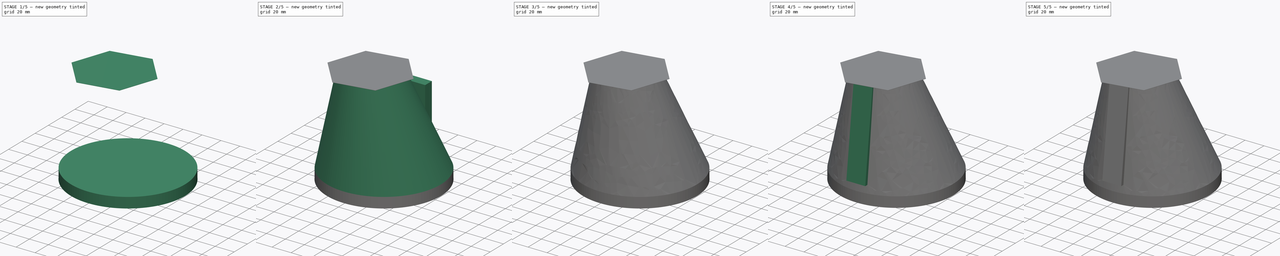
[diagram: build sequence overview — one tinted view per stage of 5, left to right]
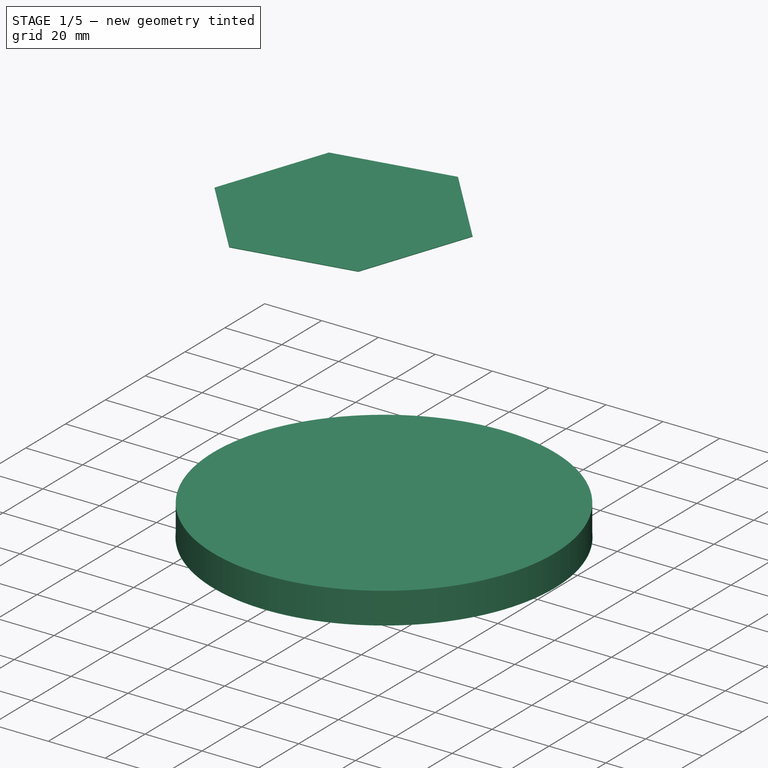
[diagram: stage 1 of 5 — iso view after this stage's code; geometry added in this stage tinted green]
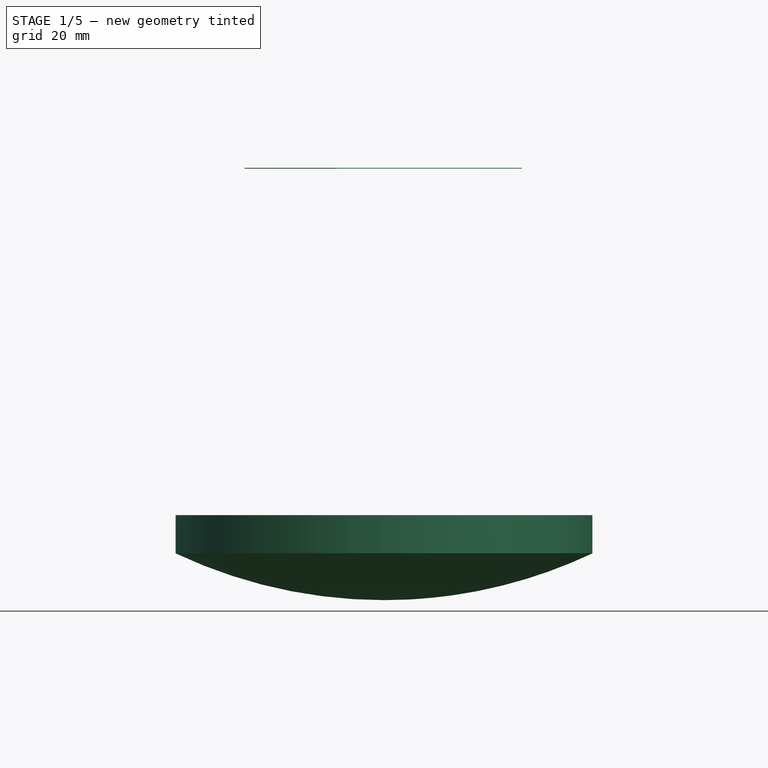
[diagram: stage 1 of 5 — front view after this stage's code; geometry added in this stage tinted green]
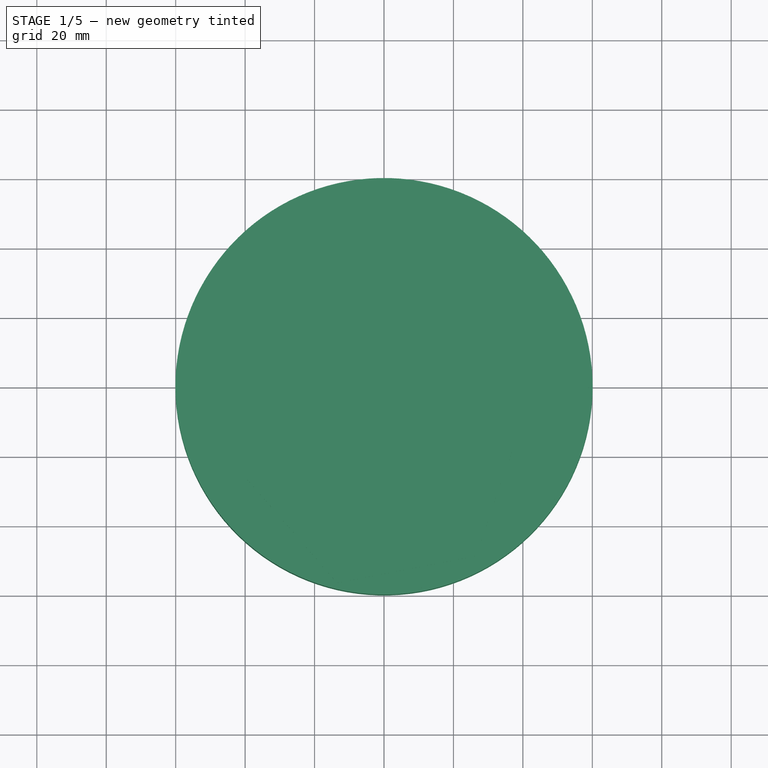
[diagram: stage 1 of 5 — top view after this stage's code; geometry added in this stage tinted green]
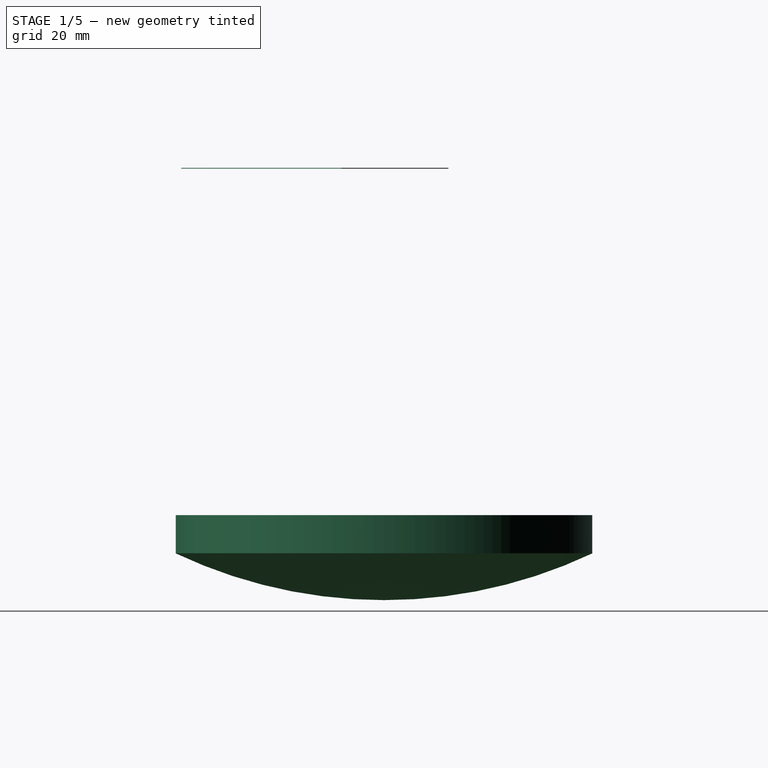
[diagram: stage 1 of 5 — right view after this stage's code; geometry added in this stage tinted green]
FCSTD DOCUMENT  (FreeCAD 0.16R6706 (Git))
Label: Simulateur_Aube_freeCAD
License: All rights reserved
LicenseURL: http://en.wikipedia.org/wiki/All_rights_reserved
objects: Sketcher::SketchObject×20, PartDesign::Pad×15, Part::Cut×5, Part::FeaturePython×4, Part::Loft×2, App::DocumentObjectGroup×2, Part::Sphere×1, Part::MultiFuse×1, Part::Fuse×1
note: 64 computed .brp shape members not serialized (recipe doc carries the construction recipe); baked Part::Feature solids carry a one-line shape summary decoded from their .brp

FEATURE [Sketcher::SketchObject] Sketch015  label="cercle_ext_base"
  sketch-geometry (1):
    g0: Circle CenterX=0 CenterY=0 CenterZ=0 NormalX=0 NormalY=0 NormalZ=1 Radius=60
  constraints (2):
    c: Coincident(g0,g-1)
    c: Radius(g0) = 60
FEATURE [Sketcher::SketchObject] Sketch016  label="cercle_int_base"
  sketch-geometry (1):
    g0: Circle CenterX=0 CenterY=0 CenterZ=0 NormalX=0 NormalY=0 NormalZ=1 Radius=59
  constraints (2):
    c: Coincident(g-1,g0)
    c: Radius(g0) = 59
FEATURE [PartDesign::Pad] Pad009
  Length = 11
  Length2 = 100
  Reversed = true
  Sketch = -> Sketch015
  Type = 0
FEATURE [PartDesign::Pad] Pad010
  Length = 11
  Length2 = 100
  Reversed = true
  Sketch = -> Sketch016
  Type = 0
FEATURE [Part::Sphere] Sphere  label="sphere_ext"
  Angle1 = -90
  Angle2 = 90
  Angle3 = 360
  Placement = pos=(0,0,116) rot=(0,0,1;0rad)
  Radius = 140.5
FEATURE [Sketcher::SketchObject] Sketch018
  Placement = pos=(0,0,-11) rot=(0,0,1;0rad)
  sketch-geometry (1):
    g0: Circle CenterX=0 CenterY=0 CenterZ=0 NormalX=0 NormalY=0 NormalZ=1 Radius=200
  constraints (2):
    c: Coincident(g-1,g0)
    c: Radius(g0) = 200
FEATURE [PartDesign::Pad] Pad011
  Length = 395
  Length2 = 100
  Placement = pos=(0,0,-11) rot=(0,0,1;0rad)
  Sketch = -> Sketch018
  Type = 0
FEATURE [Part::Cut] Cut010
  Base = -> Sphere
  Tool = -> Pad011
FEATURE [App::DocumentObjectGroup] Groupe001  label="capot"
  Group = -> [Fusion]
FEATURE [Sketcher::SketchObject] Sketch039
  Placement = pos=(0,0,99.8) rot=(0,0,1;0rad)
  sketch-geometry (7):
    g0: LineSegment StartX=39.7079 StartY=-12.2074 StartZ=0 EndX=13.0361 EndY=18.524 EndZ=0
    g1: LineSegment StartX=13.0361 StartY=18.524 StartZ=0 EndX=-26.9139 EndY=10.7912 EndZ=0
    g2: LineSegment StartX=-26.9139 StartY=10.7912 StartZ=0 EndX=-40.1922 EndY=-27.6728 EndZ=0
    g3: LineSegment StartX=-40.1922 StartY=-27.6728 StartZ=0 EndX=-13.5204 EndY=-58.4042 EndZ=0
    g4: LineSegment StartX=-13.5204 StartY=-58.4042 StartZ=0 EndX=26.4296 EndY=-50.6715 EndZ=0
    g5: LineSegment StartX=26.4296 StartY=-50.6715 StartZ=0 EndX=39.7079 EndY=-12.2074 EndZ=0
    g6: Circle [constr] CenterX=-0.242155 CenterY=-19.9401 CenterZ=0 NormalX=0 NormalY=0 NormalZ=1 Radius=40.6915
  constraints (13):
    c: Coincident(g0,g1)
    c: Coincident(g1,g2)
    c: Coincident(g2,g3)
    c: Coincident(g3,g4)
    c: Coincident(g4,g5)
    c: Coincident(g5,g0)
    c: Equal(g0, g1-g5) x5
    c: PointOnObject(g0,g6)
    c: PointOnObject(g1,g6)
    c: PointOnObject(g2,g6)
    c: PointOnObject(g3,g6)
    c: PointOnObject(g4,g6)
    c: PointOnObject(g5,g6)
FEATURE [PartDesign::Pad] Pad
  Length = 0.2
  Length2 = 100
  Placement = pos=(0,0,99.8) rot=(0,0,1;0rad)
  Sketch = -> Sketch039
  Type = 0
FEATURE [App::DocumentObjectGroup] Groupe  label="corp"
  Group = -> [Sketch005,Fusion001,Pad]
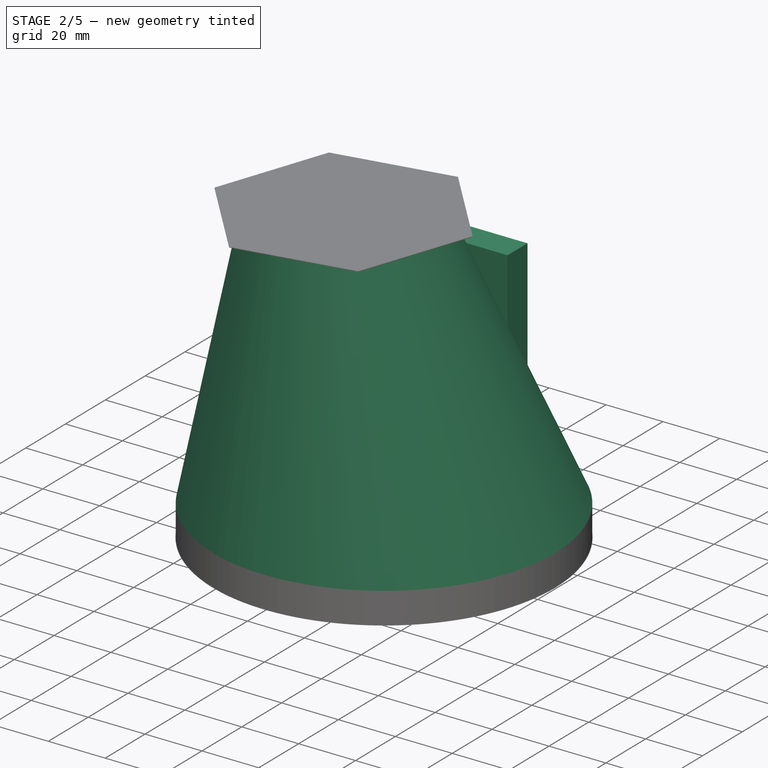
[diagram: stage 2 of 5 — iso view after this stage's code; geometry added in this stage tinted green]
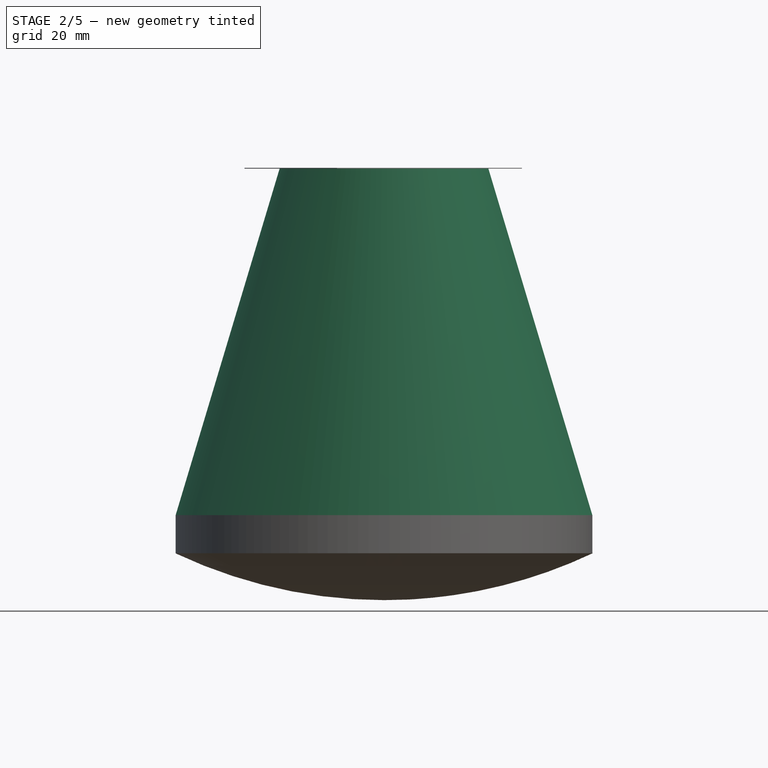
[diagram: stage 2 of 5 — front view after this stage's code; geometry added in this stage tinted green]
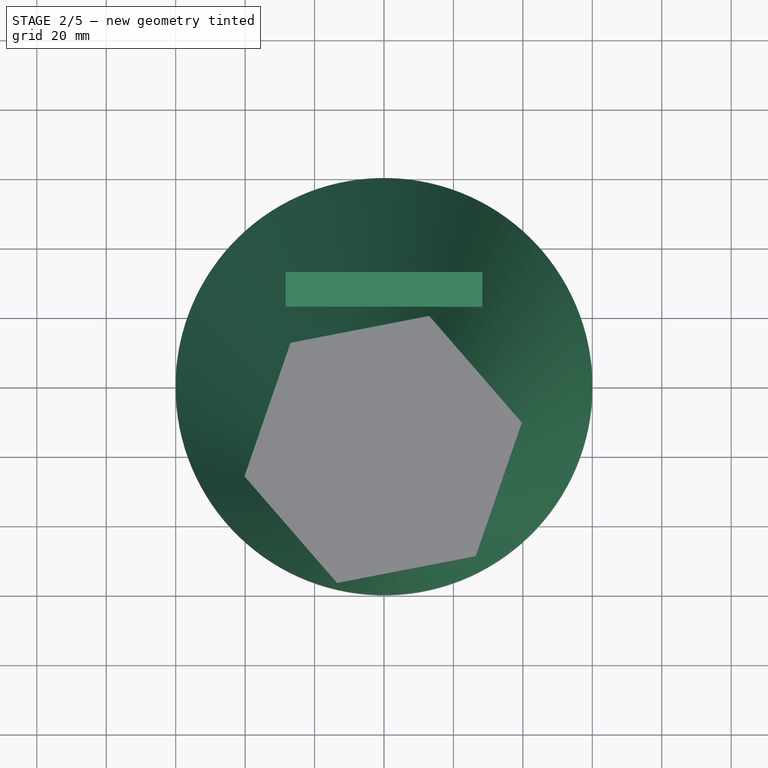
[diagram: stage 2 of 5 — top view after this stage's code; geometry added in this stage tinted green]
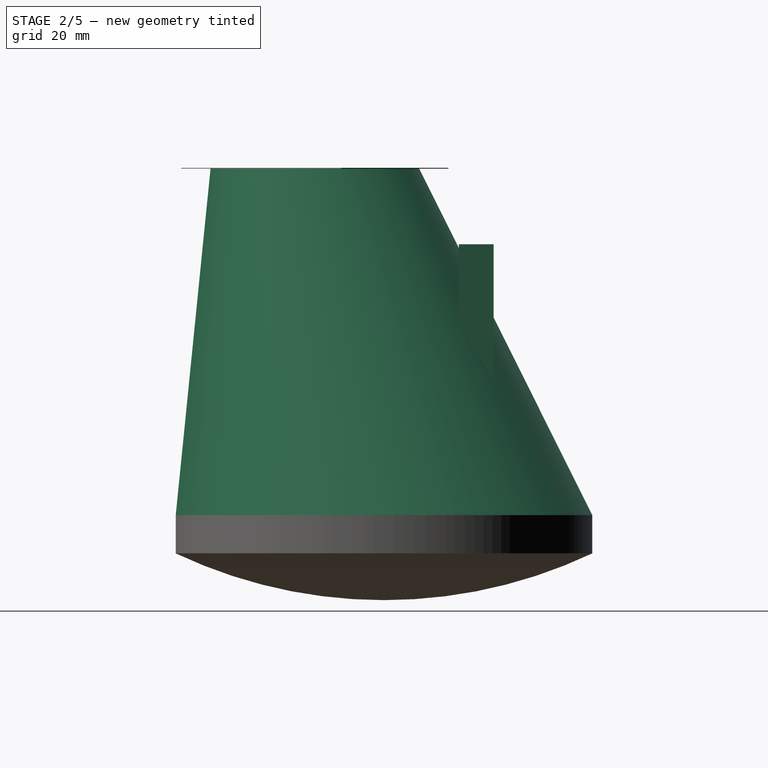
[diagram: stage 2 of 5 — right view after this stage's code; geometry added in this stage tinted green]
FEATURE [Sketcher::SketchObject] Sketch  label="cercle_ext_grand"
  sketch-geometry (1):
    g0: Circle CenterX=0 CenterY=0 CenterZ=0 NormalX=0 NormalY=0 NormalZ=1 Radius=60
  constraints (2):
    c: Coincident(g0,g-1)
    c: Radius(g0) = 60
FEATURE [Sketcher::SketchObject] Sketch002  label="cercle_int_grand"
  sketch-geometry (1):
    g0: Circle CenterX=0 CenterY=0 CenterZ=0 NormalX=0 NormalY=0 NormalZ=1 Radius=58
  constraints (2):
    c: Radius(g0) = 58
    c: Coincident(g0,g-1)
FEATURE [Sketcher::SketchObject] Sketch003  label="cercle_int_petit"
  Placement = pos=(0,0,98) rot=(0,0,1;0rad)
  sketch-geometry (1):
    g0: Circle CenterX=0 CenterY=-19.9986 CenterZ=0 NormalX=0 NormalY=0 NormalZ=1 Radius=28
  constraints (2):
    c: Radius(g0) = 28
    c: PointOnObject(g0,g-2)
FEATURE [Sketcher::SketchObject] Sketch004  label="cercle_ext_petit"
  Placement = pos=(0,0,100) rot=(0,0,1;0rad)
  sketch-geometry (1):
    g0: Circle CenterX=0 CenterY=-19.9504 CenterZ=0 NormalX=0 NormalY=0 NormalZ=1 Radius=30
  constraints (2):
    c: PointOnObject(g0,g-2)
    c: Radius(g0) = 30
FEATURE [Part::Loft] Loft  label="loft_coque_ext"
  Closed = false
  Ruled = false
  Sections = -> [Sketch,Sketch004]
  Solid = true
FEATURE [Part::Loft] Loft001  label="loft_coque_int"
  Closed = false
  Ruled = false
  Sections = -> [Sketch002,Sketch003]
  Solid = true
FEATURE [Part::Cut] Cut006
  Base = -> Pad009
  Tool = -> Pad010
FEATURE [Part::Cut] Cut  label="Coque_ext"
  Base = -> Loft
  Tool = -> Loft001
FEATURE [Sketcher::SketchObject] Sketch036  label="support_pied01"
  Placement = pos=(0,0,8) rot=(0,0,1;0rad)
  sketch-geometry (4):
    g0: LineSegment StartX=-28.3345 StartY=31.57 StartZ=0 EndX=28.3345 EndY=31.57 EndZ=0
    g1: LineSegment StartX=28.3345 StartY=31.57 StartZ=0 EndX=28.3345 EndY=21.57 EndZ=0
    g2: LineSegment StartX=28.3345 StartY=21.57 StartZ=0 EndX=-28.3345 EndY=21.57 EndZ=0
    g3: LineSegment StartX=-28.3345 StartY=21.57 StartZ=0 EndX=-28.3345 EndY=31.57 EndZ=0
  constraints (10):
    c: Coincident(g0,g1)
    c: Coincident(g1,g2)
    c: Coincident(g2,g3)
    c: Coincident(g3,g0)
    c: Horizontal(g0)
    c: Horizontal(g2)
    c: Vertical(g1)
    c: Vertical(g3)
    c: Symmetric(g0,g0,g-2)
    c: DistanceY(g3,g3) = 10
FEATURE [PartDesign::Pad] Pad021  label="support pied_1"
  Length = 70
  Length2 = 100
  Placement = pos=(0,0,8) rot=(0,0,1;0rad)
  Sketch = -> Sketch036
  Type = 0
FEATURE [Part::Fuse] Fusion
  Base = -> Cut006
  Tool = -> Cut010
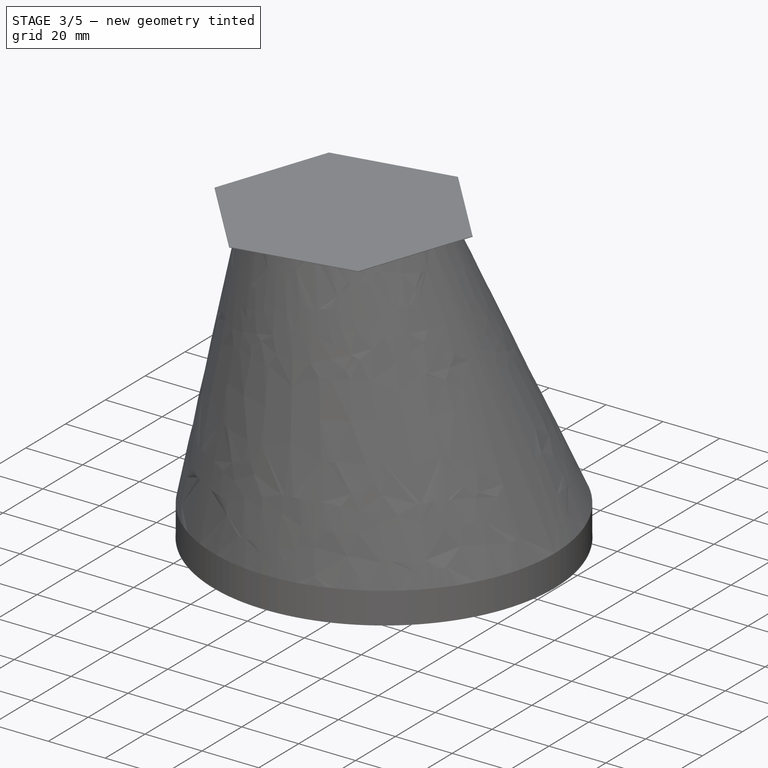
[diagram: stage 3 of 5 — iso view after this stage's code; geometry added in this stage tinted green]
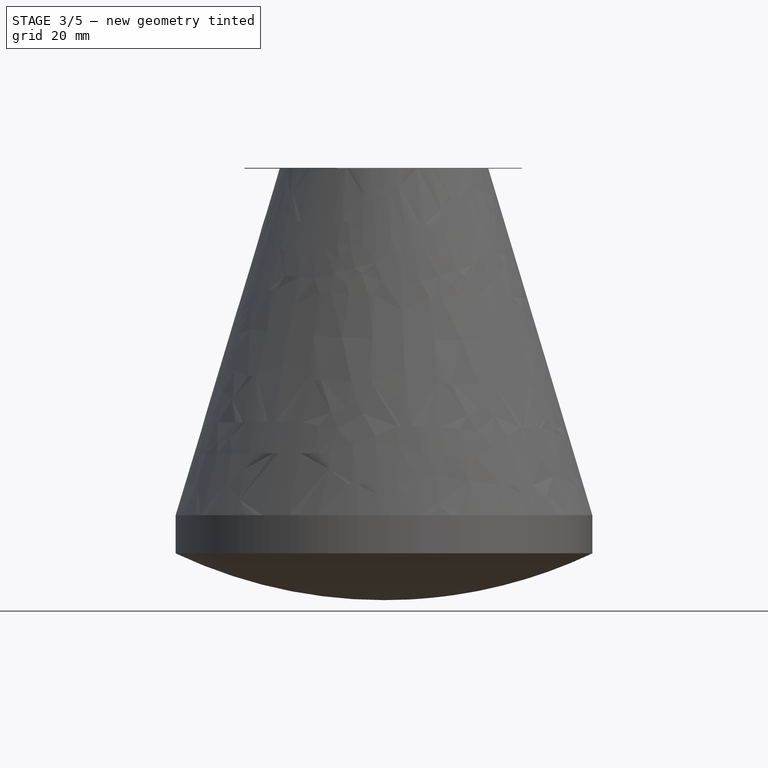
[diagram: stage 3 of 5 — front view after this stage's code; geometry added in this stage tinted green]
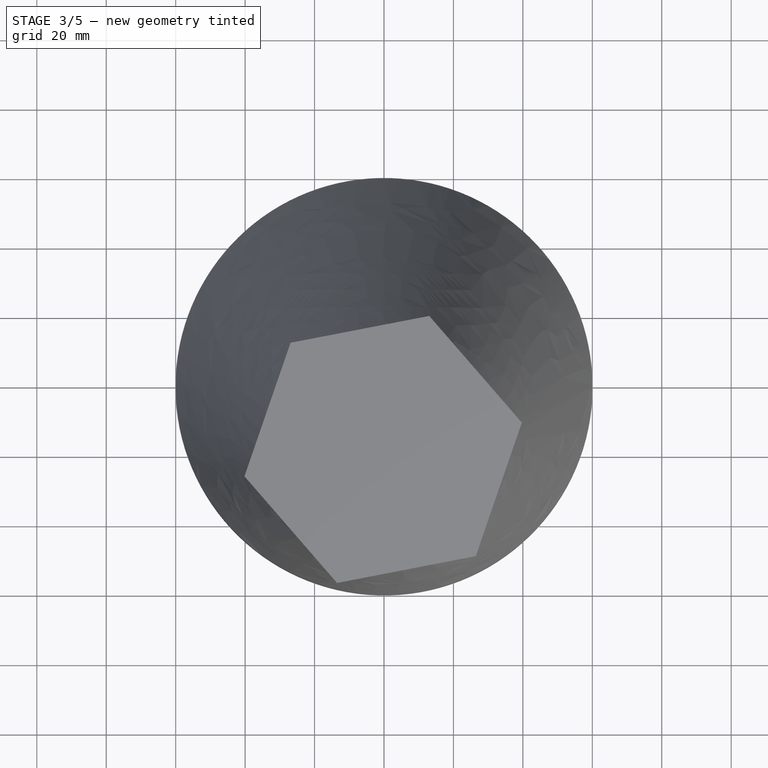
[diagram: stage 3 of 5 — top view after this stage's code; geometry added in this stage tinted green]
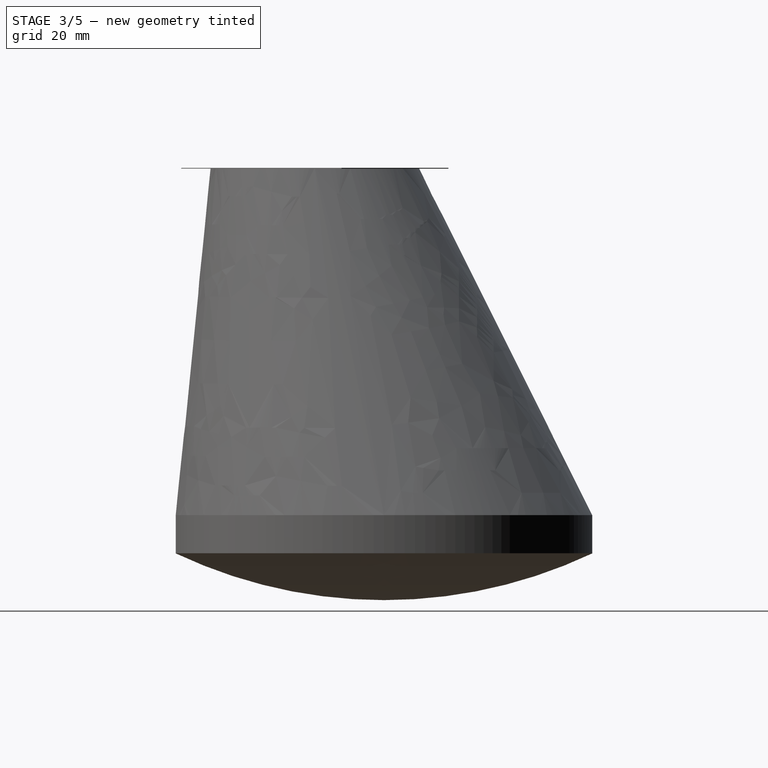
[diagram: stage 3 of 5 — right view after this stage's code; geometry added in this stage tinted green]
FEATURE [Sketcher::SketchObject] Sketch027
  Placement = pos=(0,0,97) rot=(0,0,1;0rad)
  sketch-geometry (1):
    g0: Circle CenterX=0 CenterY=-39.7397 CenterZ=0 NormalX=0 NormalY=0 NormalZ=1 Radius=4.25
  constraints (2):
    c: Radius(g0) = 4.25
    c: PointOnObject(g0,g-2)
FEATURE [PartDesign::Pad] Pad019  label="trou_alim"
  Length = 3
  Length2 = 100
  Placement = pos=(0,0,97) rot=(0,0,1;0rad)
  Sketch = -> Sketch027
  Type = 0
FEATURE [Part::Cut] Cut009  label="Coque ext"
  Base = -> Cut
  Tool = -> Pad019
FEATURE [Sketcher::SketchObject] Sketch037  label="support_pied02"
  Placement = pos=(0,0,8) rot=(0,0,1;0rad)
  sketch-geometry (4):
    g0: LineSegment StartX=-38.5665 StartY=-21.775 StartZ=0 EndX=-11.9401 EndY=-21.775 EndZ=0
    g1: LineSegment StartX=-11.9401 StartY=-21.775 StartZ=0 EndX=-11.9401 EndY=-31.775 EndZ=0
    g2: LineSegment StartX=-11.9401 StartY=-31.775 StartZ=0 EndX=-38.5665 EndY=-31.775 EndZ=0
    g3: LineSegment StartX=-38.5665 StartY=-31.775 StartZ=0 EndX=-38.5665 EndY=-21.775 EndZ=0
  constraints (9):
    c: Coincident(g0,g1)
    c: Coincident(g1,g2)
    c: Coincident(g2,g3)
    c: Coincident(g3,g0)
    c: Horizontal(g0)
    c: Horizontal(g2)
    c: Vertical(g1)
    c: Vertical(g3)
    c: DistanceY(g3,g3) = 10
FEATURE [PartDesign::Pad] Pad022  label="support_pied_2"
  Length = 91
  Length2 = 100
  Placement = pos=(0,0,8) rot=(0,0,1;0rad)
  Sketch = -> Sketch037
  Type = 0
FEATURE [Part::FeaturePython] Connect  # WARN: FeaturePython — macro-defined, semantics opaque (R4)
  Base = -> Cut009
  Mode = 1
  Tool = -> Pad021
FEATURE [Part::FeaturePython] Connect001  # WARN: FeaturePython — macro-defined, semantics opaque (R4)
  Base = -> Connect
  Mode = 1
  Tool = -> Pad022
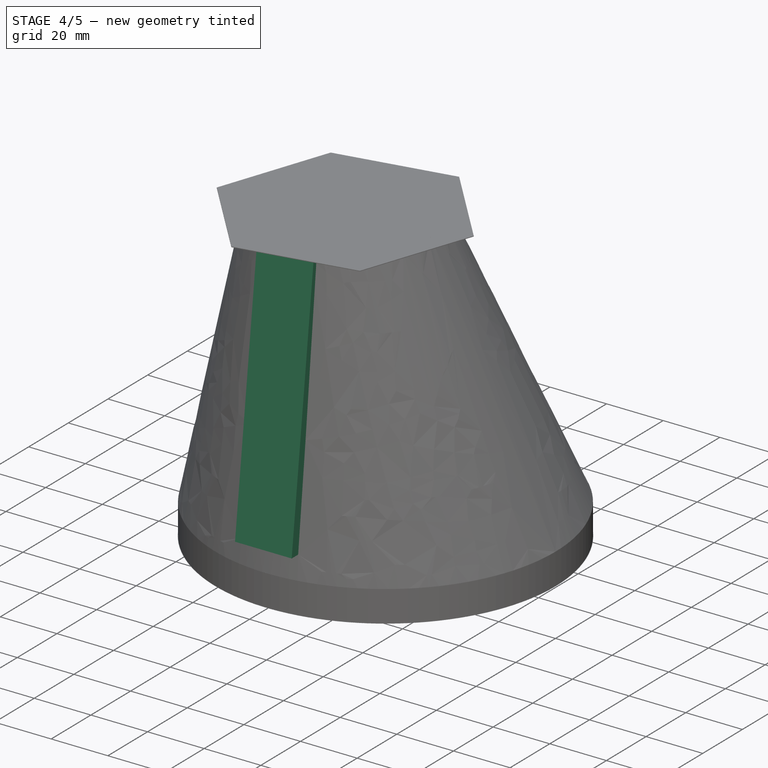
[diagram: stage 4 of 5 — iso view after this stage's code; geometry added in this stage tinted green]
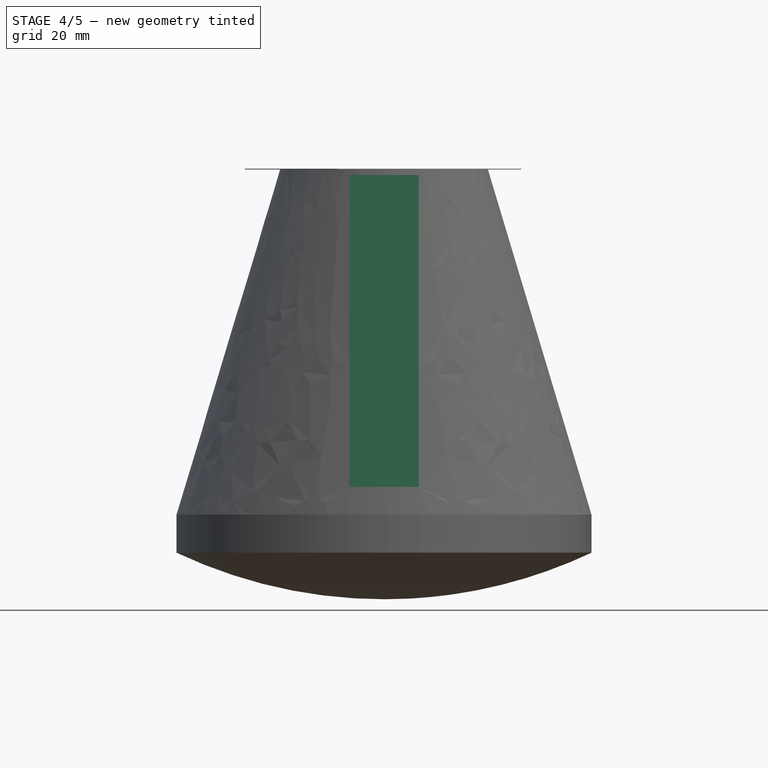
[diagram: stage 4 of 5 — front view after this stage's code; geometry added in this stage tinted green]
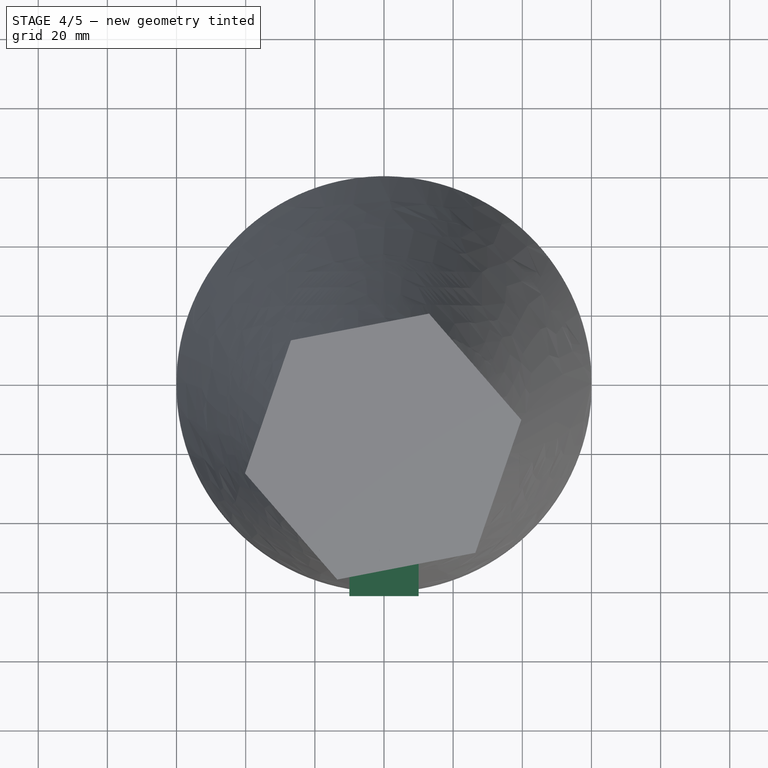
[diagram: stage 4 of 5 — top view after this stage's code; geometry added in this stage tinted green]
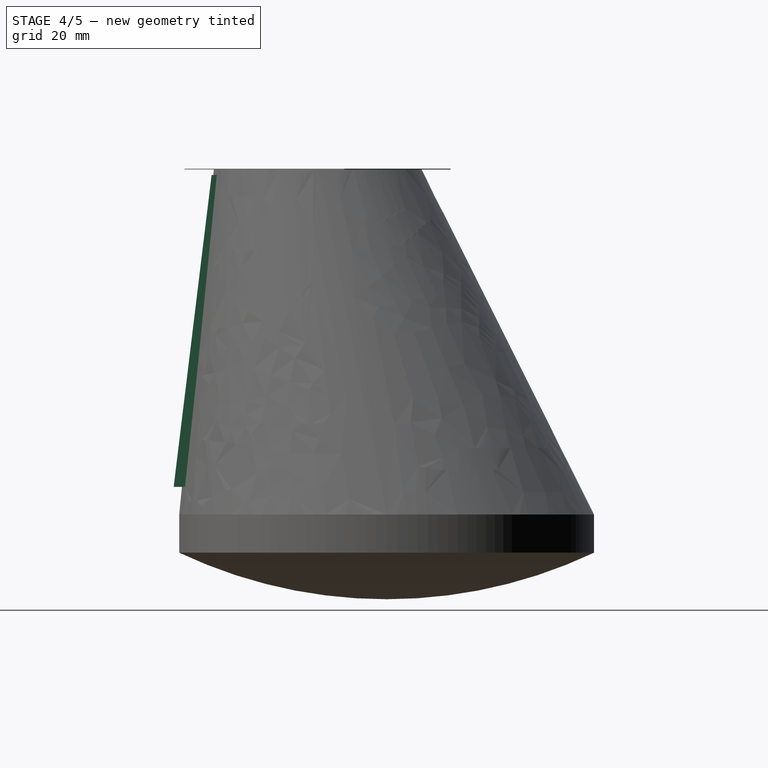
[diagram: stage 4 of 5 — right view after this stage's code; geometry added in this stage tinted green]
FEATURE [Sketcher::SketchObject] Sketch022
  Placement = pos=(-10,0.8,-1.2) rot=(0.57735,0.57735,0.57735;2.0944rad)
  sketch-geometry (4):
    g0: LineSegment StartX=-49.9099 StartY=99.4037 StartZ=0 EndX=-51.4099 EndY=99.4037 EndZ=0
    g1: LineSegment StartX=-51.4099 StartY=99.4037 StartZ=0 EndX=-62.3898 EndY=9.18162 EndZ=0
    g2: LineSegment StartX=-62.3898 StartY=9.18162 StartZ=0 EndX=-58.8898 EndY=9.18162 EndZ=0
    g3: LineSegment StartX=-58.8898 StartY=9.18162 StartZ=0 EndX=-49.9099 EndY=99.4037 EndZ=0
  constraints (8):
    c: Horizontal(g0)
    c: Coincident(g0,g1)
    c: Coincident(g1,g2)
    c: Horizontal(g2)
    c: Coincident(g2,g3)
    c: Coincident(g3,g0)
    c: DistanceX(g2,g2) = 3.5
    c: DistanceX(g0,g0) = 1.5
FEATURE [PartDesign::Pad] Pad014  label="pied_coque"
  Length = 20
  Length2 = 100
  Placement = pos=(-10,0.8,-1.2) rot=(0.57735,0.57735,0.57735;2.0944rad)
  Sketch = -> Sketch022
  Type = 0
FEATURE [Sketcher::SketchObject] Sketch025
  Placement = pos=(35,-53,3) rot=(0,0,1;0rad)
  sketch-geometry (1):
    g0: Circle CenterX=-17.4905 CenterY=26.4922 CenterZ=0 NormalX=0 NormalY=0 NormalZ=1 Radius=0.5
  constraints (1):
    c: Radius(g0) = 0.5
FEATURE [PartDesign::Pad] Pad017  label="pied_picot_3"
  Length = 5
  Length2 = 100
  Placement = pos=(35,-53,3) rot=(0,0,1;0rad)
  Sketch = -> Sketch025
  Type = 0
FEATURE [Sketcher::SketchObject] Sketch026
  Placement = pos=(0,-53,3) rot=(0,0,1;0rad)
  sketch-geometry (1):
    g0: Circle CenterX=-17.4905 CenterY=26.4922 CenterZ=0 NormalX=0 NormalY=0 NormalZ=1 Radius=0.5
  constraints (1):
    c: Radius(g0) = 0.5
FEATURE [PartDesign::Pad] Pad018  label="pied_picot4"
  Length = 5
  Length2 = 100
  Placement = pos=(0,-53,3) rot=(0,0,1;0rad)
  Sketch = -> Sketch026
  Type = 0
FEATURE [Sketcher::SketchObject] Sketch038  label="support_pied_03"
  Placement = pos=(0,0,8) rot=(0,0,1;0rad)
  sketch-geometry (4):
    g0: LineSegment StartX=11.5819 StartY=-21.2398 StartZ=0 EndX=39.0353 EndY=-21.2398 EndZ=0
    g1: LineSegment StartX=39.0353 StartY=-21.2398 StartZ=0 EndX=39.0353 EndY=-31.2398 EndZ=0
    g2: LineSegment StartX=39.0353 StartY=-31.2398 StartZ=0 EndX=11.5819 EndY=-31.2398 EndZ=0
    g3: LineSegment StartX=11.5819 StartY=-31.2398 StartZ=0 EndX=11.5819 EndY=-21.2398 EndZ=0
  constraints (9):
    c: Coincident(g0,g1)
    c: Coincident(g1,g2)
    c: Coincident(g2,g3)
    c: Coincident(g3,g0)
    c: Horizontal(g0)
    c: Horizontal(g2)
    c: Vertical(g1)
    c: Vertical(g3)
    c: DistanceY(g3,g3) = 10
FEATURE [PartDesign::Pad] Pad023  label="support_pied_3"
  Length = 91
  Length2 = 100
  Placement = pos=(0,0,8) rot=(0,0,1;0rad)
  Sketch = -> Sketch038
  Type = 0
FEATURE [Part::FeaturePython] Connect002  # WARN: FeaturePython — macro-defined, semantics opaque (R4)
  Base = -> Connect001
  Mode = 1
  Tool = -> Pad023
FEATURE [Part::FeaturePython] Connect003  # WARN: FeaturePython — macro-defined, semantics opaque (R4)
  Base = -> Connect002
  Mode = 1
  Tool = -> Pad014
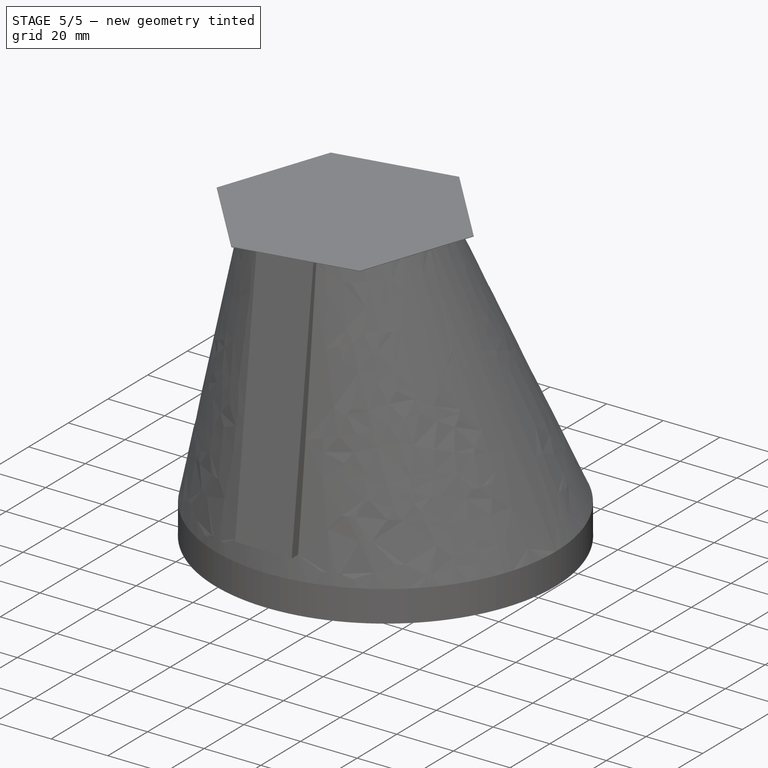
[diagram: stage 5 of 5 — iso view after this stage's code; geometry added in this stage tinted green]
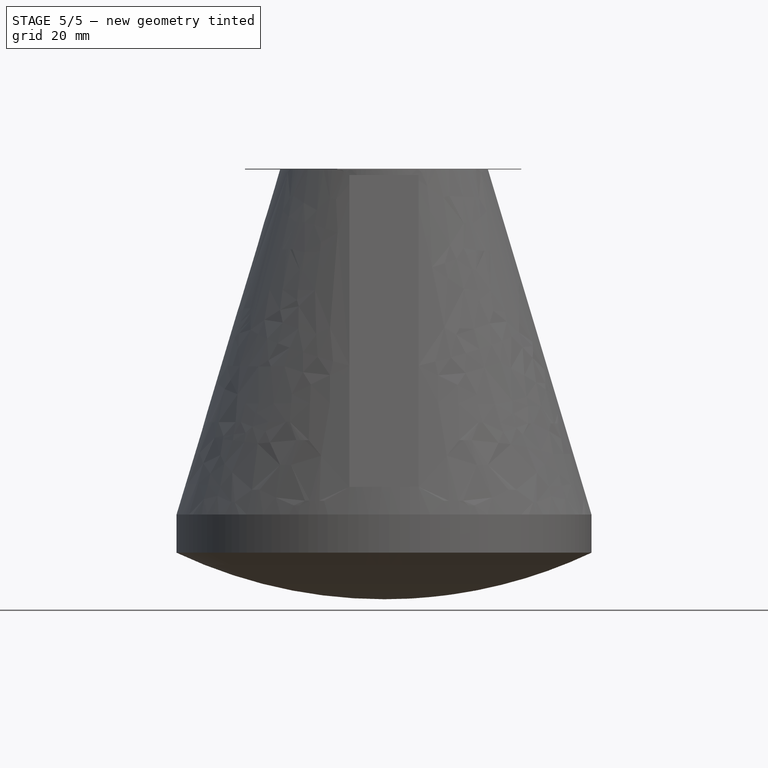
[diagram: stage 5 of 5 — front view after this stage's code; geometry added in this stage tinted green]
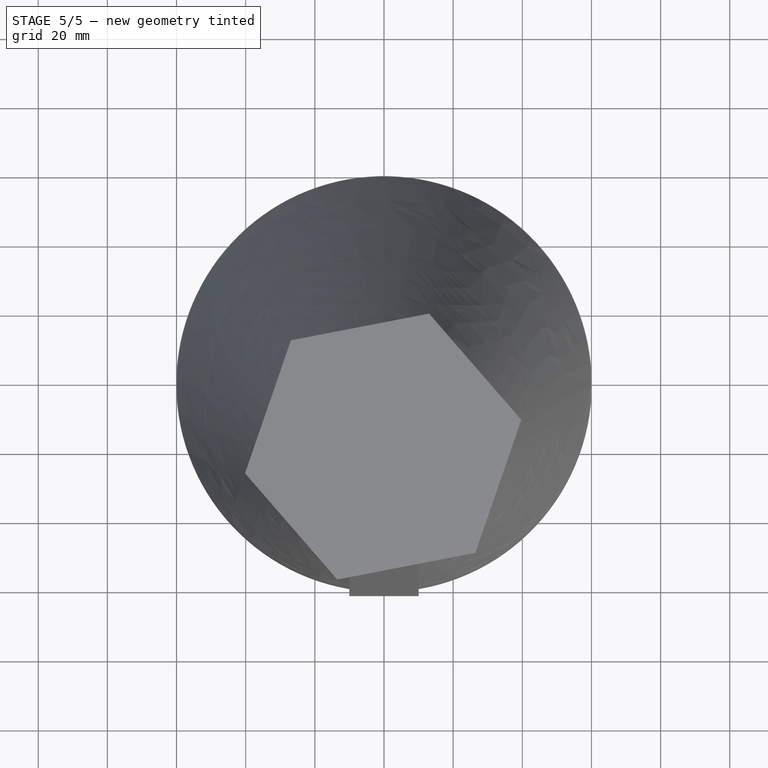
[diagram: stage 5 of 5 — top view after this stage's code; geometry added in this stage tinted green]
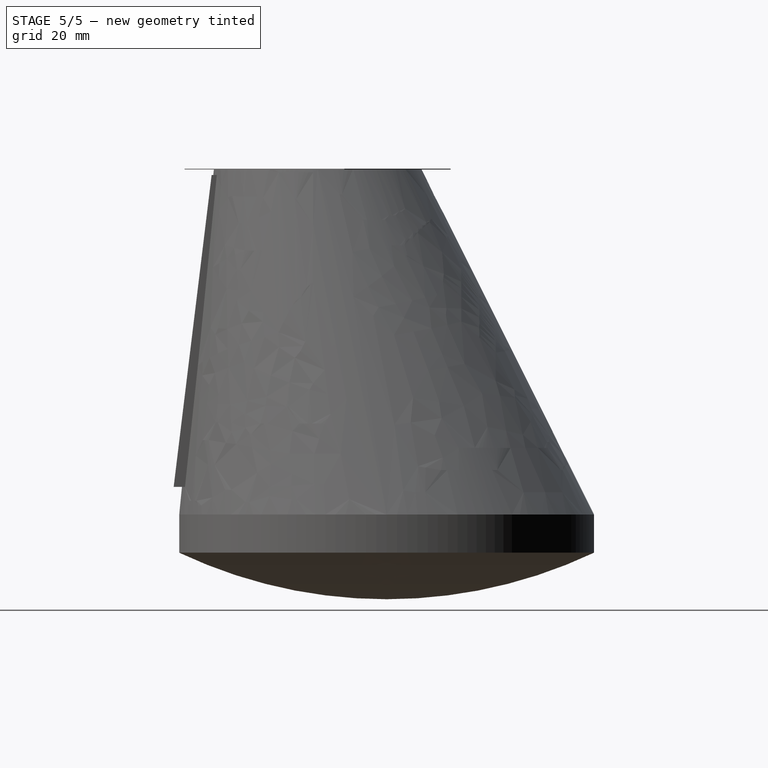
[diagram: stage 5 of 5 — right view after this stage's code; geometry added in this stage tinted green]
FEATURE [Sketcher::SketchObject] Sketch005  label="repere"
  Placement = pos=(0,0,8) rot=(0,0,1;0rad)
  sketch-geometry (12):
    g0: LineSegment StartX=-36.5 StartY=36.5 StartZ=0 EndX=36.5 EndY=36.5 EndZ=0
    g1: LineSegment StartX=36.5 StartY=36.5 StartZ=0 EndX=36.5 EndY=-36.5 EndZ=0
    g2: LineSegment StartX=36.5 StartY=-36.5 StartZ=0 EndX=-36.5 EndY=-36.5 EndZ=0
    g3: LineSegment StartX=-36.5 StartY=-36.5 StartZ=0 EndX=-36.5 EndY=36.5 EndZ=0
    g4: LineSegment StartX=-17.5 StartY=26.5 StartZ=0 EndX=17.5 EndY=26.5 EndZ=0
    g5: LineSegment StartX=17.5 StartY=26.5 StartZ=0 EndX=17.5 EndY=-26.5 EndZ=0
    g6: LineSegment StartX=17.5 StartY=-26.5 StartZ=0 EndX=-17.5 EndY=-26.5 EndZ=0
    g7: LineSegment StartX=-17.5 StartY=-26.5 StartZ=0 EndX=-17.5 EndY=26.5 EndZ=0
    g8: Circle CenterX=-17.5 CenterY=26.5 CenterZ=0 NormalX=0 NormalY=0 NormalZ=1 Radius=5
    g9: Circle CenterX=17.5 CenterY=26.5 CenterZ=0 NormalX=0 NormalY=0 NormalZ=1 Radius=5
    g10: Circle CenterX=17.5 CenterY=-26.5 CenterZ=0 NormalX=0 NormalY=0 NormalZ=1 Radius=5
    g11: Circle CenterX=-17.5 CenterY=-26.5 CenterZ=0 NormalX=0 NormalY=0 NormalZ=1 Radius=5
  constraints (31):
    c: Coincident(g0,g1)
    c: Coincident(g1,g2)
    c: Coincident(g2,g3)
    c: Coincident(g3,g0)
    c: Horizontal(g0)
    c: Horizontal(g2)
    c: Vertical(g1)
    c: Vertical(g3)
    c: Symmetric(g0,g0,g-2)
    c: DistanceX(g0,g0) = 73
    c: Symmetric(g0,g2,g-1)
    c: DistanceY(g3,g3) = 73
    c: Coincident(g4,g5)
    c: Coincident(g5,g6)
    c: Coincident(g6,g7)
    c: Coincident(g7,g4)
    c: Horizontal(g6)
    c: Vertical(g5)
    c: Vertical(g7)
    c: Symmetric(g4,g4,g-2)
    c: DistanceX(g4,g4) = 35
    c: DistanceY(g7,g7) = 53
    c: Radius(g8) = 5
    c: Coincident(g8,g4)
    c: Radius(g9) = 5
    c: Coincident(g9,g4)
    c: Radius(g10) = 5
    c: Coincident(g10,g5)
    c: Radius(g11) = 5
    c: Coincident(g11,g6)
    c: Symmetric(g4,g6,g-1)
FEATURE [Sketcher::SketchObject] Sketch011  label="bord_haut_ext"
  Placement = pos=(0,0,3) rot=(0,0,1;0rad)
  sketch-geometry (1):
    g0: Circle CenterX=0 CenterY=0 CenterZ=0 NormalX=0 NormalY=0 NormalZ=1 Radius=58.1
  constraints (2):
    c: Radius(g0) = 58.1
    c: Coincident(g0,g-1)
FEATURE [Sketcher::SketchObject] Sketch012  label="bord_haut_int"
  Placement = pos=(0,0,3) rot=(0,0,1;0rad)
  sketch-geometry (1):
    g0: Circle CenterX=0 CenterY=0 CenterZ=0 NormalX=0 NormalY=0 NormalZ=1 Radius=56
  constraints (2):
    c: Radius(g0) = 56
    c: Coincident(g0,g-1)
FEATURE [PartDesign::Pad] Pad005  label="pad_bord_haut_ext"
  Length = 12
  Length2 = 100
  Placement = pos=(0,0,3) rot=(0,0,1;0rad)
  Reversed = true
  Sketch = -> Sketch011
  Type = 0
FEATURE [PartDesign::Pad] Pad006  label="pad_bord_haut_int"
  Length = 12
  Length2 = 100
  Placement = pos=(0,0,3) rot=(0,0,1;0rad)
  Reversed = true
  Sketch = -> Sketch012
  Type = 0
FEATURE [Part::Cut] Cut003  label="bord_haut_1"
  Base = -> Pad005
  Tool = -> Pad006
FEATURE [Sketcher::SketchObject] Sketch023
  Placement = pos=(0,0,3) rot=(0,0,1;0rad)
  sketch-geometry (1):
    g0: Circle CenterX=-17.4905 CenterY=26.4922 CenterZ=0 NormalX=0 NormalY=0 NormalZ=1 Radius=0.5
  constraints (1):
    c: Radius(g0) = 0.5
FEATURE [PartDesign::Pad] Pad015  label="pied_picot_1"
  Length = 5
  Length2 = 100
  Placement = pos=(0,0,3) rot=(0,0,1;0rad)
  Sketch = -> Sketch023
  Type = 0
FEATURE [Sketcher::SketchObject] Sketch024
  Placement = pos=(35,0,3) rot=(0,0,1;0rad)
  sketch-geometry (1):
    g0: Circle CenterX=-17.4905 CenterY=26.4922 CenterZ=0 NormalX=0 NormalY=0 NormalZ=1 Radius=0.5
  constraints (1):
    c: Radius(g0) = 0.5
FEATURE [PartDesign::Pad] Pad016  label="pied_picot_2"
  Length = 5
  Length2 = 100
  Placement = pos=(35,0,3) rot=(0,0,1;0rad)
  Sketch = -> Sketch024
  Type = 0
FEATURE [Part::MultiFuse] Fusion001
  Shapes = -> [Cut003,Pad015,Connect003,Pad017,Pad018,Pad016]
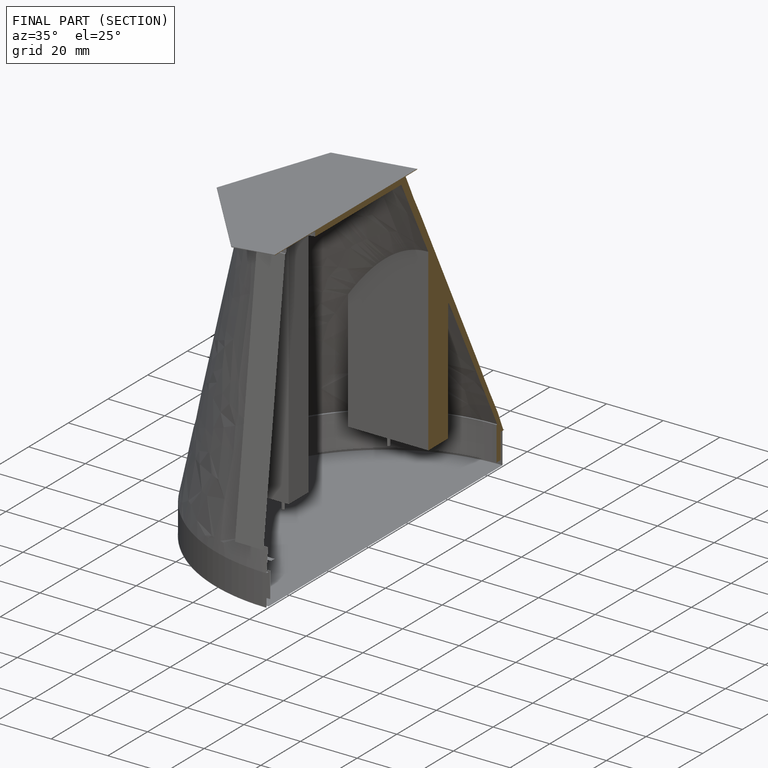
[diagram: finished part — half-section view (interior)]
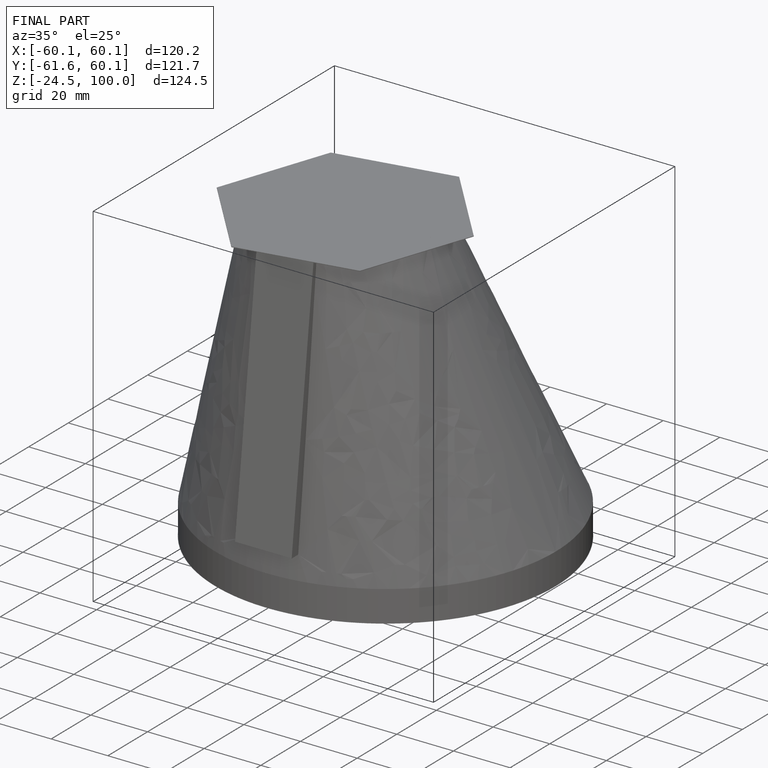
[diagram: finished part — iso view with bounding-box wireframe]
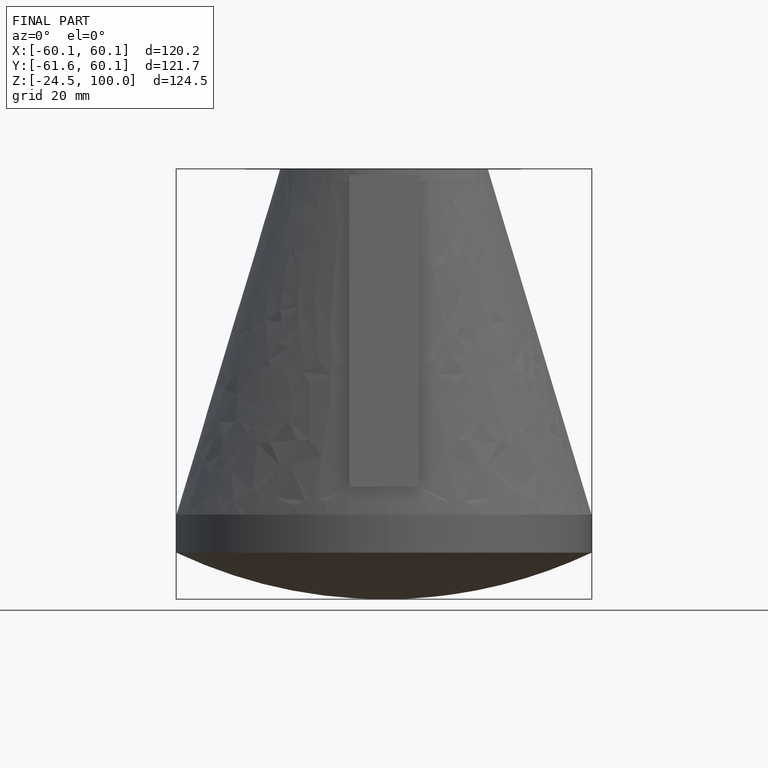
[diagram: finished part — front view with bounding-box wireframe]
